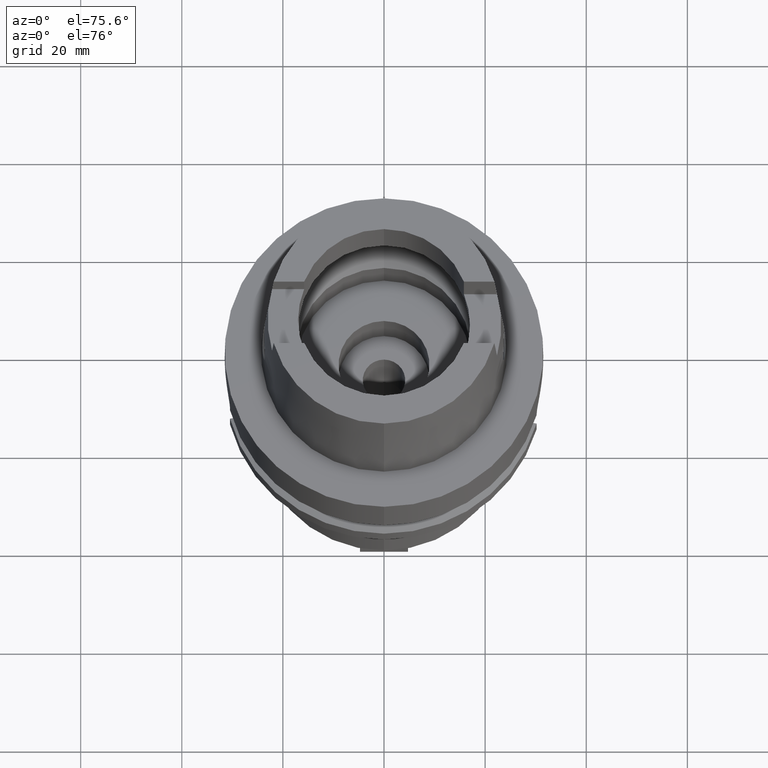
[diagram: clean part render]
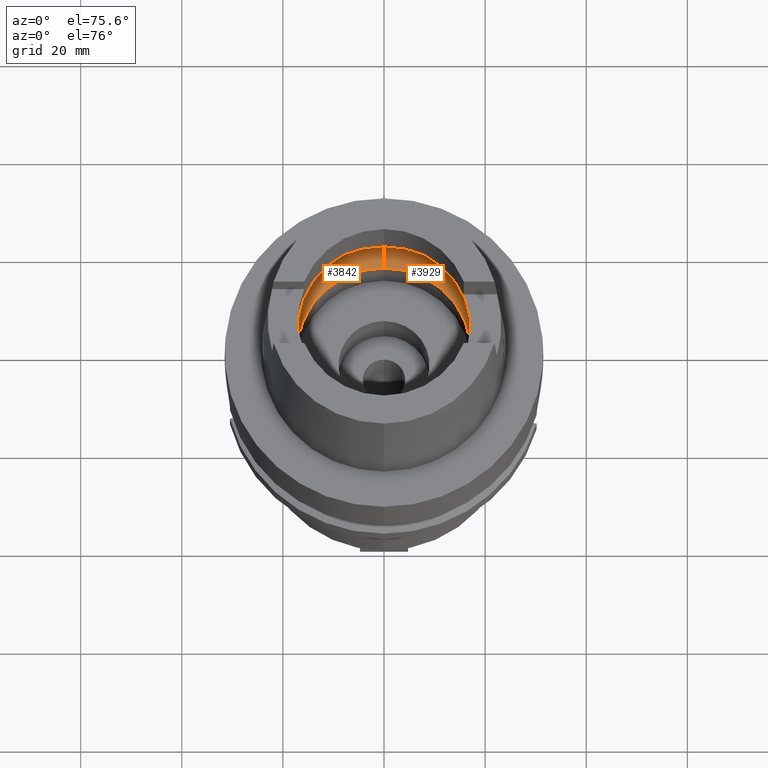
[diagram: same view with one multi-face feature highlighted, each face labeled with its STEP entity id]
A machine part, auxiliary view. The highlighted faces form ONE feature: a constant-radius fillet chain: 2 tangent blend faces with common blend radius 8 mm. The faces share edges in the B-rep.
Their STEP definitions:
[1] entity #3842 (Torus):
#1774=CARTESIAN_POINT('',(-1.984575864666E1,-2.479085262491E0,
6.186348233825E0));
#1775=CARTESIAN_POINT('',(-1.987370771882E1,-2.255345260874E0,
5.989212771894E0));
#1776=CARTESIAN_POINT('',(-1.991332895189E1,-1.758882382518E0,
5.646921041047E0));
#1777=CARTESIAN_POINT('',(-1.994018891292E1,-9.058447440112E-1,
5.323259319607E0));
#1778=CARTESIAN_POINT('',(-1.994501428476E1,-3.022092202537E-1,5.25E0));
#1779=CARTESIAN_POINT('',(-1.994501428476E1,0.E0,5.25E0));
#1784=CARTESIAN_POINT('',(-1.994501428476E1,0.E0,5.25E0));
#1785=CARTESIAN_POINT('',(-1.994501428476E1,3.022079959061E-1,5.25E0));
#1786=CARTESIAN_POINT('',(-1.994018898018E1,9.058420490936E-1,
5.323258465798E0));
#1787=CARTESIAN_POINT('',(-1.991332889140E1,1.758884038002E0,5.646921660838E0));
#1788=CARTESIAN_POINT('',(-1.987370764676E1,2.255345837801E0,5.989213280220E0));
#1789=CARTESIAN_POINT('',(-1.984575864666E1,2.479085262491E0,6.186348233825E0));
#1794=CARTESIAN_POINT('',(0.E0,0.E0,6.186348233825E0));
#1795=DIRECTION('',(0.E0,0.E0,-1.E0));
#1796=DIRECTION('',(-9.922879323328E-1,1.239542631245E-1,0.E0));
#1797=AXIS2_PLACEMENT_3D('',#1794,#1795,#1796);
#1802=CARTESIAN_POINT('',(0.E0,0.E0,1.500000000001E-1));
#1803=DIRECTION('',(0.E0,0.E0,1.E0));
#1804=DIRECTION('',(0.E0,1.E0,0.E0));
#1805=AXIS2_PLACEMENT_3D('',#1802,#1803,#1804);
#1810=CARTESIAN_POINT('',(0.E0,-1.2E1,6.186348233825E0));
#1811=DIRECTION('',(-1.E0,0.E0,0.E0));
#1812=DIRECTION('',(0.E0,-6.5625E-1,-7.545435292281E-1));
#1813=AXIS2_PLACEMENT_3D('',#1810,#1811,#1812);
#1818=CARTESIAN_POINT('',(0.E0,0.E0,6.186348233825E0));
#1819=DIRECTION('',(0.E0,0.E0,-1.E0));
#1820=DIRECTION('',(0.E0,-1.E0,0.E0));
#1821=AXIS2_PLACEMENT_3D('',#1818,#1819,#1820);
#1845=CARTESIAN_POINT('',(-1.984575864666E1,-2.479085262491E0,
6.186348233825E0));
#1948=CARTESIAN_POINT('',(0.E0,1.2E1,6.186348233825E0));
#1949=DIRECTION('',(1.E0,0.E0,0.E0));
#1950=DIRECTION('',(0.E0,6.5625E-1,-7.545435292281E-1));
#1951=AXIS2_PLACEMENT_3D('',#1948,#1949,#1950);
#2229=VERTEX_POINT('',#1845);
#2230=CARTESIAN_POINT('',(0.E0,-2.E1,6.186348233825E0));
#2231=VERTEX_POINT('',#2230);
#2232=CARTESIAN_POINT('',(0.E0,2.E1,6.186348233825E0));
#2233=VERTEX_POINT('',#2232);
#2234=CARTESIAN_POINT('',(-1.984575864666E1,2.479085262490E0,6.186348233825E0));
#2235=VERTEX_POINT('',#2234);
#2236=CARTESIAN_POINT('',(-1.994501428476E1,0.E0,5.25E0));
#2237=VERTEX_POINT('',#2236);
#2242=CARTESIAN_POINT('',(0.E0,1.725E1,1.500000000001E-1));
#2243=VERTEX_POINT('',#2242);
#2244=CARTESIAN_POINT('',(0.E0,-1.725E1,1.500000000001E-1));
#2245=VERTEX_POINT('',#2244);
#3822=CARTESIAN_POINT('',(0.E0,0.E0,6.186348233825E0));
#3823=DIRECTION('',(0.E0,0.E0,1.E0));
#3824=DIRECTION('',(0.E0,1.E0,0.E0));
#3825=AXIS2_PLACEMENT_3D('',#3822,#3823,#3824);
#3826=TOROIDAL_SURFACE('',#3825,1.2E1,8.E0);
#3828=ORIENTED_EDGE('',*,*,#3827,.T.);
#3830=ORIENTED_EDGE('',*,*,#3829,.T.);
#3832=ORIENTED_EDGE('',*,*,#3831,.T.);
#3834=ORIENTED_EDGE('',*,*,#3833,.F.);
#3835=ORIENTED_EDGE('',*,*,#3817,.T.);
#3837=ORIENTED_EDGE('',*,*,#3836,.T.);
#3839=ORIENTED_EDGE('',*,*,#3838,.T.);
#3840=EDGE_LOOP('',(#3828,#3830,#3832,#3834,#3835,#3837,#3839));
#3841=FACE_OUTER_BOUND('',#3840,.F.);
#1780=B_SPLINE_CURVE_WITH_KNOTS('',3,(#1774,#1775,#1776,#1777,#1778,#1779),
.UNSPECIFIED.,.F.,.F.,(4,1,1,4),(0.E0,3.333333333333E-1,6.666666666667E-1,1.E0),
.UNSPECIFIED.);
#1790=B_SPLINE_CURVE_WITH_KNOTS('',3,(#1784,#1785,#1786,#1787,#1788,#1789),
.UNSPECIFIED.,.F.,.F.,(4,1,1,4),(0.E0,3.333333333333E-1,6.666666666667E-1,1.E0),
.UNSPECIFIED.);
#1798=CIRCLE('',#1797,2.E1);
#1806=CIRCLE('',#1805,1.725E1);
#1814=CIRCLE('',#1813,8.E0);
#1822=CIRCLE('',#1821,2.E1);
#1952=CIRCLE('',#1951,8.E0);
#3817=EDGE_CURVE('',#2243,#2245,#1806,.T.);
#3827=EDGE_CURVE('',#2229,#2237,#1780,.T.);
#3829=EDGE_CURVE('',#2237,#2235,#1790,.T.);
#3831=EDGE_CURVE('',#2235,#2233,#1798,.T.);
#3833=EDGE_CURVE('',#2243,#2233,#1952,.T.);
#3836=EDGE_CURVE('',#2245,#2231,#1814,.T.);
#3838=EDGE_CURVE('',#2231,#2229,#1822,.T.);
#3842=ADVANCED_FACE('',(#3841),#3826,.F.);
[2] entity #3929 (Torus):
#1810=CARTESIAN_POINT('',(0.E0,-1.2E1,6.186348233825E0));
#1811=DIRECTION('',(-1.E0,0.E0,0.E0));
#1812=DIRECTION('',(0.E0,-6.5625E-1,-7.545435292281E-1));
#1813=AXIS2_PLACEMENT_3D('',#1810,#1811,#1812);
#1874=CARTESIAN_POINT('',(1.984575864666E1,-2.479085262491E0,6.186348233825E0));
#1903=CARTESIAN_POINT('',(1.984575864666E1,2.479085262491E0,6.186348233825E0));
#1922=CARTESIAN_POINT('',(1.994501428476E1,0.E0,5.25E0));
#1923=CARTESIAN_POINT('',(1.994501428476E1,-3.022109186395E-1,5.25E0));
#1924=CARTESIAN_POINT('',(1.994018886112E1,-9.058486760299E-1,
5.323260138817E0));
#1925=CARTESIAN_POINT('',(1.991332874853E1,-1.758885968800E0,5.646923075843E0));
#1926=CARTESIAN_POINT('',(1.987370755586E1,-2.255346565443E0,5.989213921339E0));
#1927=CARTESIAN_POINT('',(1.984575864666E1,-2.479085262491E0,6.186348233825E0));
#1932=CARTESIAN_POINT('',(0.E0,0.E0,6.186348233825E0));
#1933=DIRECTION('',(0.E0,0.E0,-1.E0));
#1934=DIRECTION('',(9.922879323328E-1,-1.239542631245E-1,0.E0));
#1935=AXIS2_PLACEMENT_3D('',#1932,#1933,#1934);
#1940=CARTESIAN_POINT('',(0.E0,0.E0,1.500000000001E-1));
#1941=DIRECTION('',(0.E0,0.E0,1.E0));
#1942=DIRECTION('',(0.E0,-1.E0,0.E0));
#1943=AXIS2_PLACEMENT_3D('',#1940,#1941,#1942);
#1948=CARTESIAN_POINT('',(0.E0,1.2E1,6.186348233825E0));
#1949=DIRECTION('',(1.E0,0.E0,0.E0));
#1950=DIRECTION('',(0.E0,6.5625E-1,-7.545435292281E-1));
#1951=AXIS2_PLACEMENT_3D('',#1948,#1949,#1950);
#1956=CARTESIAN_POINT('',(0.E0,0.E0,6.186348233825E0));
#1957=DIRECTION('',(0.E0,0.E0,-1.E0));
#1958=DIRECTION('',(0.E0,1.E0,0.E0));
#1959=AXIS2_PLACEMENT_3D('',#1956,#1957,#1958);
#1964=CARTESIAN_POINT('',(1.984575864666E1,2.479085262491E0,6.186348233825E0));
#1965=CARTESIAN_POINT('',(1.987370781167E1,2.255344517610E0,5.989212117010E0));
#1966=CARTESIAN_POINT('',(1.991332909699E1,1.758880408516E0,5.646919602665E0));
#1967=CARTESIAN_POINT('',(1.994018903230E1,9.058380857037E-1,5.323257641096E0));
#1968=CARTESIAN_POINT('',(1.994501428476E1,3.022062841843E-1,5.25E0));
#1969=CARTESIAN_POINT('',(1.994501428476E1,0.E0,5.25E0));
#2230=CARTESIAN_POINT('',(0.E0,-2.E1,6.186348233825E0));
#2231=VERTEX_POINT('',#2230);
#2232=CARTESIAN_POINT('',(0.E0,2.E1,6.186348233825E0));
#2233=VERTEX_POINT('',#2232);
#2238=VERTEX_POINT('',#1874);
#2240=VERTEX_POINT('',#1922);
#2241=VERTEX_POINT('',#1903);
#2242=CARTESIAN_POINT('',(0.E0,1.725E1,1.500000000001E-1));
#2243=VERTEX_POINT('',#2242);
#2244=CARTESIAN_POINT('',(0.E0,-1.725E1,1.500000000001E-1));
#2245=VERTEX_POINT('',#2244);
#3914=CARTESIAN_POINT('',(0.E0,0.E0,6.186348233825E0));
#3915=DIRECTION('',(0.E0,0.E0,1.E0));
#3916=DIRECTION('',(0.E0,1.E0,0.E0));
#3917=AXIS2_PLACEMENT_3D('',#3914,#3915,#3916);
#3918=TOROIDAL_SURFACE('',#3917,1.2E1,8.E0);
#3919=ORIENTED_EDGE('',*,*,#3904,.T.);
#3920=ORIENTED_EDGE('',*,*,#3893,.T.);
#3921=ORIENTED_EDGE('',*,*,#3836,.F.);
#3922=ORIENTED_EDGE('',*,*,#3801,.T.);
#3923=ORIENTED_EDGE('',*,*,#3833,.T.);
#3924=ORIENTED_EDGE('',*,*,#3887,.T.);
#3926=ORIENTED_EDGE('',*,*,#3925,.T.);
#3927=EDGE_LOOP('',(#3919,#3920,#3921,#3922,#3923,#3924,#3926));
#3928=FACE_OUTER_BOUND('',#3927,.F.);
#1814=CIRCLE('',#1813,8.E0);
#1928=B_SPLINE_CURVE_WITH_KNOTS('',3,(#1922,#1923,#1924,#1925,#1926,#1927),
.UNSPECIFIED.,.F.,.F.,(4,1,1,4),(0.E0,3.333333333333E-1,6.666666666667E-1,1.E0),
.UNSPECIFIED.);
#1936=CIRCLE('',#1935,2.E1);
#1944=CIRCLE('',#1943,1.725E1);
#1952=CIRCLE('',#1951,8.E0);
#1960=CIRCLE('',#1959,2.E1);
#1970=B_SPLINE_CURVE_WITH_KNOTS('',3,(#1964,#1965,#1966,#1967,#1968,#1969),
.UNSPECIFIED.,.F.,.F.,(4,1,1,4),(0.E0,3.333333333333E-1,6.666666666667E-1,1.E0),
.UNSPECIFIED.);
#3801=EDGE_CURVE('',#2245,#2243,#1944,.T.);
#3833=EDGE_CURVE('',#2243,#2233,#1952,.T.);
#3836=EDGE_CURVE('',#2245,#2231,#1814,.T.);
#3887=EDGE_CURVE('',#2233,#2241,#1960,.T.);
#3893=EDGE_CURVE('',#2238,#2231,#1936,.T.);
#3904=EDGE_CURVE('',#2240,#2238,#1928,.T.);
#3925=EDGE_CURVE('',#2241,#2240,#1970,.T.);
#3929=ADVANCED_FACE('',(#3928),#3918,.F.);